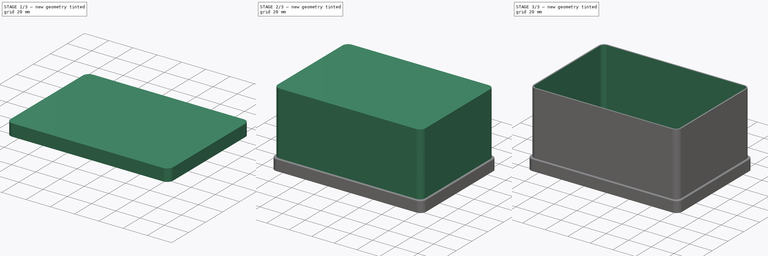
[diagram: build sequence overview — one tinted view per stage of 3, left to right]
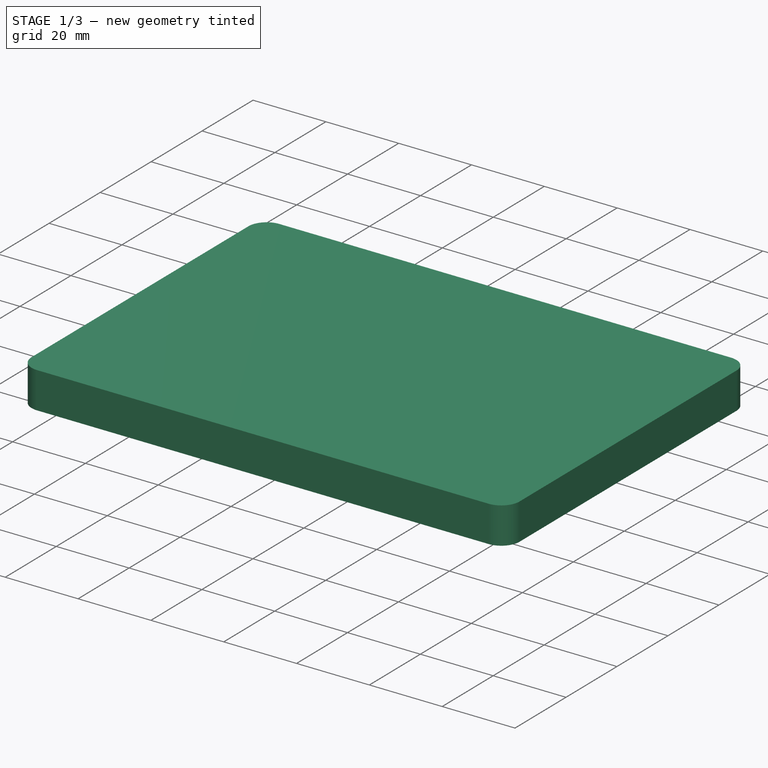
[diagram: stage 1 of 3 — iso view after this stage's code; geometry added in this stage tinted green]
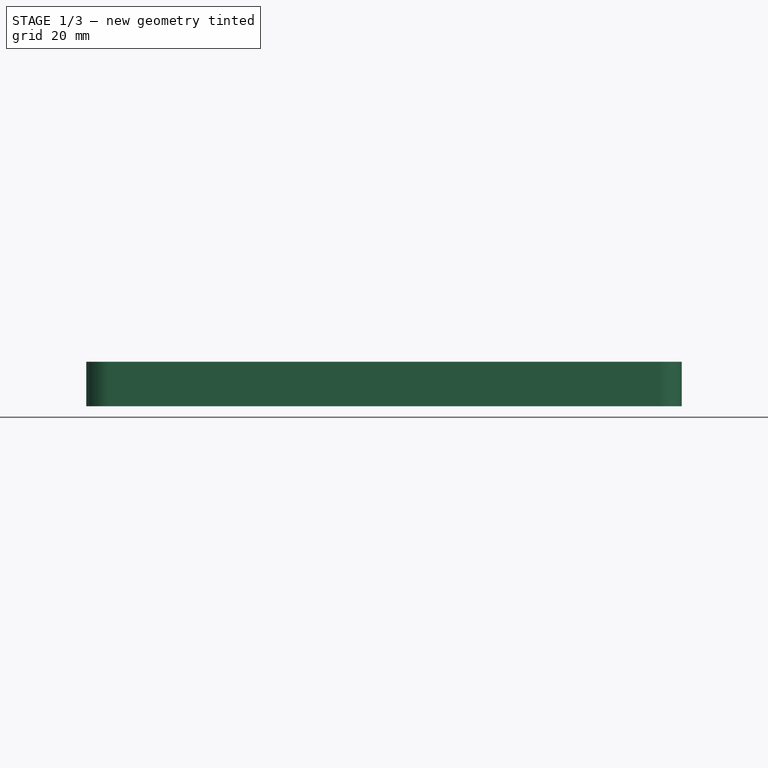
[diagram: stage 1 of 3 — front view after this stage's code; geometry added in this stage tinted green]
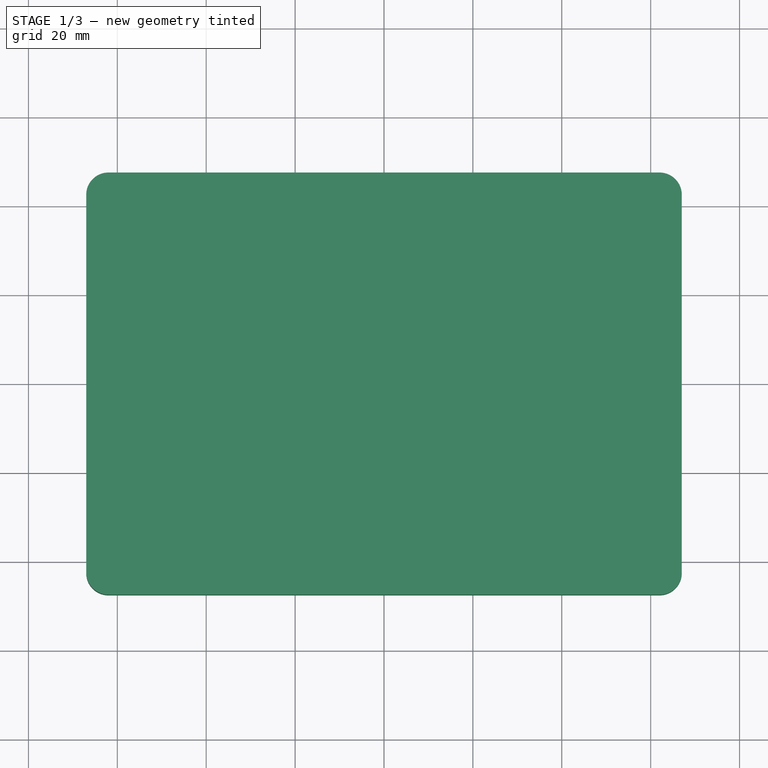
[diagram: stage 1 of 3 — top view after this stage's code; geometry added in this stage tinted green]
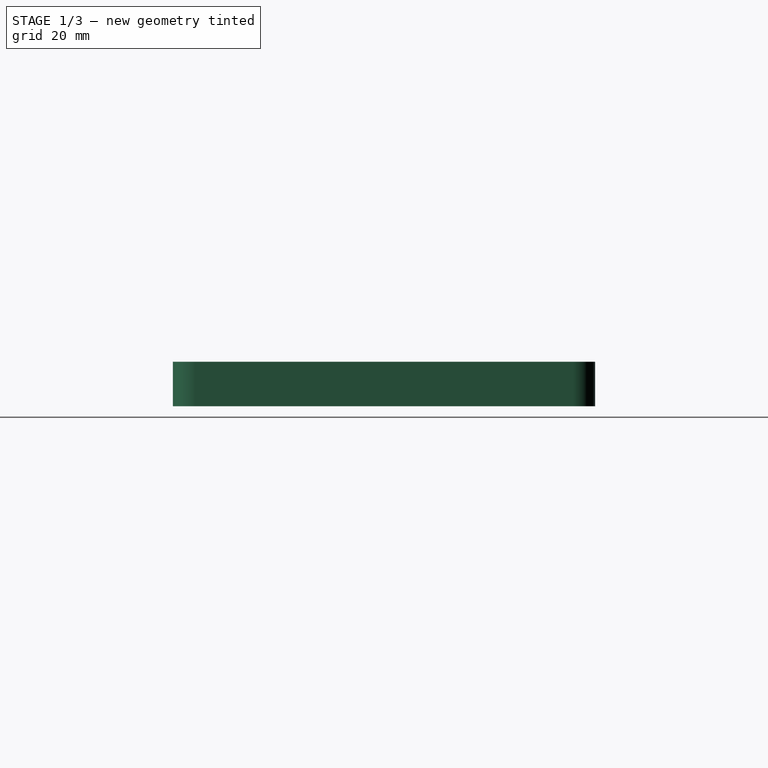
[diagram: stage 1 of 3 — right view after this stage's code; geometry added in this stage tinted green]
FCSTD DOCUMENT  (FreeCAD 0.21R33771 (Git))
Label: 德佟P2标签打印机盒子
License: All rights reserved
LicenseURL: https://en.wikipedia.org/wiki/All_rights_reserved
objects: PartDesign::Fillet×4, Sketcher::SketchObject×2, PartDesign::Pad×2, PartDesign::Thickness×2, PartDesign::Body×2, App::Part×2
note: 20 computed .brp shape members not serialized (recipe doc carries the construction recipe); baked Part::Feature solids carry a one-line shape summary decoded from their .brp

FEATURE [Sketcher::SketchObject] Sketch001
  FullyConstrained = true
  MapMode = 5
  sketch-geometry (12):
    g0: LineSegment StartX=-67 StartY=42.5 StartZ=0 EndX=-67 EndY=-42.5 EndZ=0
    g1: LineSegment StartX=-62 StartY=-47.5 StartZ=0 EndX=62 EndY=-47.5 EndZ=0
    g2: LineSegment StartX=67 StartY=-42.5 StartZ=0 EndX=67 EndY=42.5 EndZ=0
    g3: LineSegment StartX=62 StartY=47.5 StartZ=0 EndX=-62 EndY=47.5 EndZ=0
    g4: ArcOfCircle CenterX=-62 CenterY=42.5 CenterZ=0 NormalX=0 NormalY=0 NormalZ=1 AngleXU=0 Radius=5 StartAngle=1.5708 EndAngle=3.14159
    g5: GeomPoint X=-67 Y=47.5 Z=0
    g6: ArcOfCircle CenterX=62 CenterY=42.5 CenterZ=0 NormalX=0 NormalY=0 NormalZ=1 AngleXU=0 Radius=5 StartAngle=-9e-16 EndAngle=1.5708
    g7: GeomPoint X=67 Y=47.5 Z=0
    g8: ArcOfCircle CenterX=62 CenterY=-42.5 CenterZ=0 NormalX=0 NormalY=0 NormalZ=1 AngleXU=0 Radius=5 StartAngle=4.71239 EndAngle=6.28319
    g9: GeomPoint X=67 Y=-47.5 Z=0
    g10: ArcOfCircle CenterX=-62 CenterY=-42.5 CenterZ=0 NormalX=0 NormalY=0 NormalZ=1 AngleXU=0 Radius=5 StartAngle=3.14159 EndAngle=4.71239
    g11: GeomPoint X=-67 Y=-47.5 Z=0
  constraints (27):
    c: Vertical(g0)
    c: Vertical(g2)
    c: Horizontal(g1)
    c: Horizontal(g3)
    c: DistanceY(g9,g7) = 95
    c: DistanceX(g11,g9) = 134
    c: PointOnObject(g5,g0)
    c: PointOnObject(g5,g3)
    c: Tangent(g0,g4) = -1.5708
    c: Tangent(g3,g4) = -1.5708
    c: PointOnObject(g7,g3)
    c: PointOnObject(g7,g2)
    c: Tangent(g3,g6) = -1.5708
    c: Tangent(g2,g6) = -1.5708
    c: PointOnObject(g9,g2)
    c: PointOnObject(g9,g1)
    c: Tangent(g2,g8) = -1.5708
    c: Tangent(g1,g8) = -1.5708
    c: PointOnObject(g11,g1)
    c: PointOnObject(g11,g0)
    c: Tangent(g1,g10) = -1.5708
    c: Tangent(g0,g10) = -1.5708
    c: Radius(g10) = 5
    c: Radius(g8) = 5
    c: Radius(g6) = 5
    c: Radius(g4) = 5
    c: Symmetric(g4,g8,g-1)
FEATURE [PartDesign::Pad] Pad001
  Direction = (0,0,1)
  Length = 10
  Length2 = 10
  Profile = -> Sketch001
  ReferenceAxis = -> Sketch001 [N_Axis]
  Refine = true
  Type = 0
FEATURE [PartDesign::Thickness] Thickness001
  Base = -> Pad001 [Face9]
  BaseFeature = -> Pad001
  Intersection = false
  Join = 0
  Mode = 0
  Refine = true
  Reversed = true
  SupportTransform = false
  Value = 1.2
FEATURE [PartDesign::Fillet] Fillet001
  Base = -> Thickness001 [Edge25]
  BaseFeature = -> Thickness001
  Radius = 1
  Refine = true
  SupportTransform = false
  UseAllEdges = false
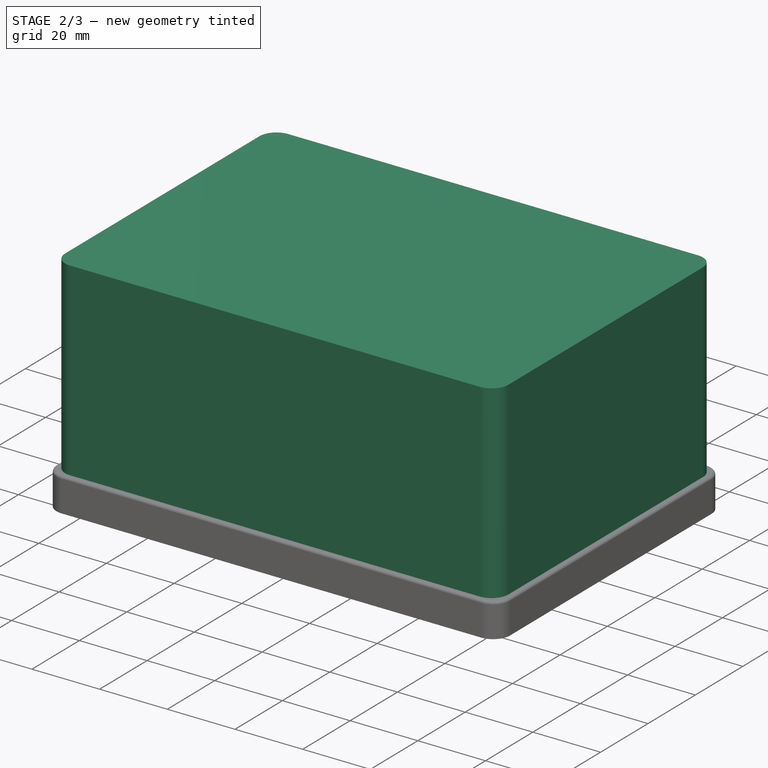
[diagram: stage 2 of 3 — iso view after this stage's code; geometry added in this stage tinted green]
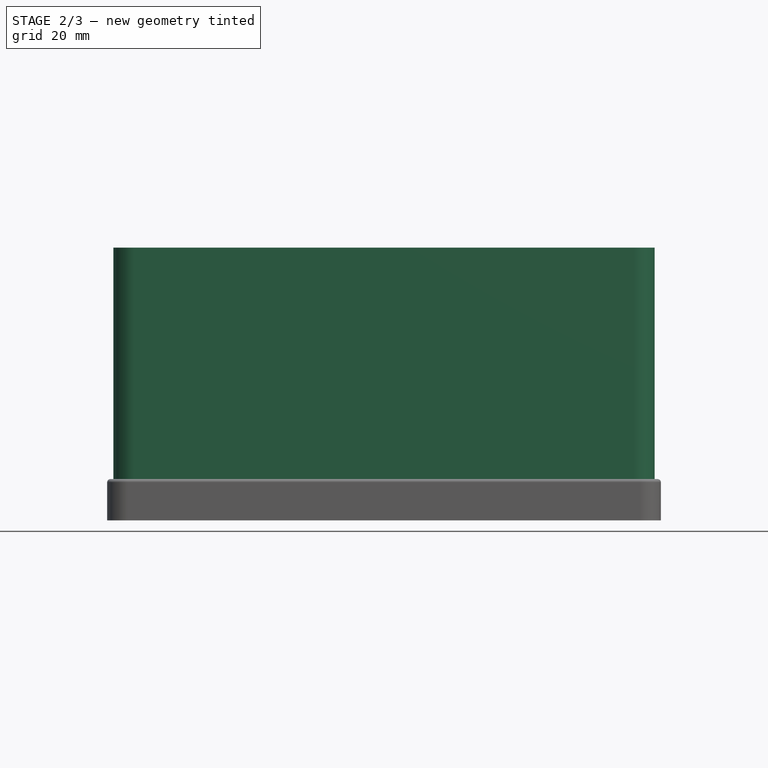
[diagram: stage 2 of 3 — front view after this stage's code; geometry added in this stage tinted green]
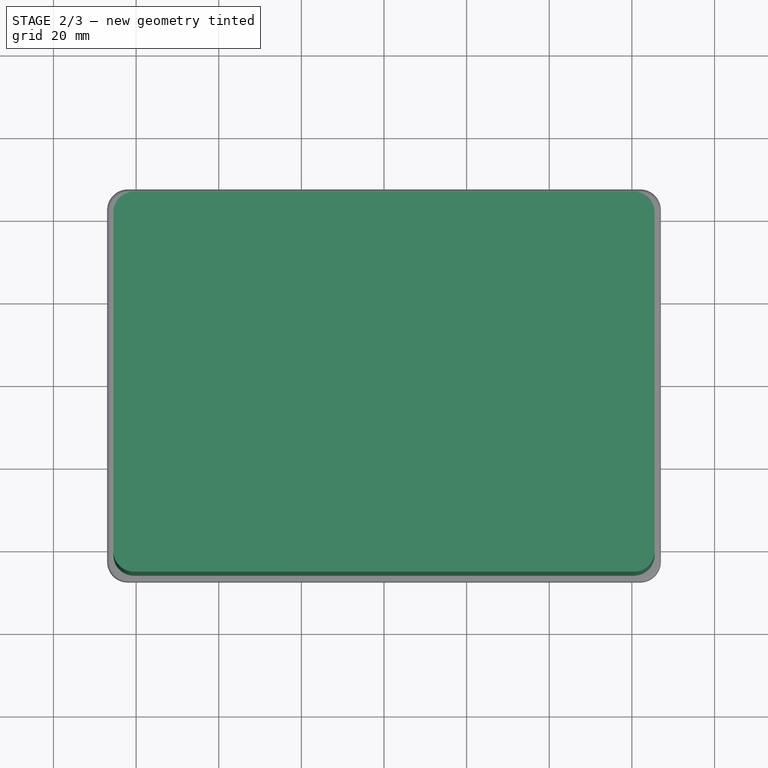
[diagram: stage 2 of 3 — top view after this stage's code; geometry added in this stage tinted green]
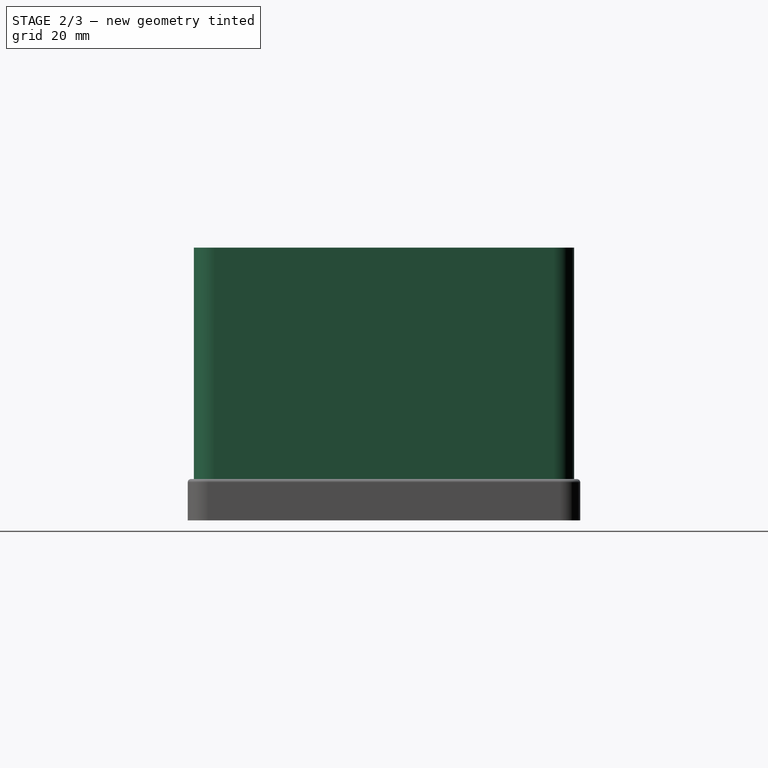
[diagram: stage 2 of 3 — right view after this stage's code; geometry added in this stage tinted green]
FEATURE [Sketcher::SketchObject] Sketch
  FullyConstrained = true
  MapMode = 5
  sketch-geometry (12):
    g0: LineSegment StartX=-65.5 StartY=41 StartZ=0 EndX=-65.5 EndY=-41 EndZ=0
    g1: LineSegment StartX=-60.5 StartY=-46 StartZ=0 EndX=60.5 EndY=-46 EndZ=0
    g2: LineSegment StartX=65.5 StartY=-41 StartZ=0 EndX=65.5 EndY=41 EndZ=0
    g3: LineSegment StartX=60.5 StartY=46 StartZ=0 EndX=-60.5 EndY=46 EndZ=0
    g4: ArcOfCircle CenterX=60.5 CenterY=41 CenterZ=0 NormalX=0 NormalY=0 NormalZ=1 AngleXU=0 Radius=5 StartAngle=0 EndAngle=1.5708
    g5: GeomPoint X=65.5 Y=46 Z=0
    g6: ArcOfCircle CenterX=60.5 CenterY=-41 CenterZ=0 NormalX=0 NormalY=0 NormalZ=1 AngleXU=0 Radius=5 StartAngle=4.71239 EndAngle=6.28319
    g7: GeomPoint X=65.5 Y=-46 Z=0
    g8: ArcOfCircle CenterX=-60.5 CenterY=-41 CenterZ=0 NormalX=0 NormalY=0 NormalZ=1 AngleXU=0 Radius=5 StartAngle=3.14159 EndAngle=4.71239
    g9: GeomPoint X=-65.5 Y=-46 Z=0
    g10: ArcOfCircle CenterX=-60.5 CenterY=41 CenterZ=0 NormalX=0 NormalY=0 NormalZ=1 AngleXU=0 Radius=5 StartAngle=1.5708 EndAngle=3.14159
    g11: GeomPoint X=-65.5 Y=46 Z=0
  constraints (27):
    c: Vertical(g0)
    c: Vertical(g2)
    c: Horizontal(g1)
    c: Horizontal(g3)
    c: DistanceX(g11,g5) = 131
    c: DistanceY(g9,g11) = 92
    c: PointOnObject(g5,g3)
    c: PointOnObject(g5,g2)
    c: Tangent(g3,g4) = -1.5708
    c: Tangent(g2,g4) = -1.5708
    c: PointOnObject(g7,g1)
    c: PointOnObject(g7,g2)
    c: Tangent(g1,g6) = -1.5708
    c: Tangent(g2,g6) = -1.5708
    c: PointOnObject(g9,g1)
    c: PointOnObject(g9,g0)
    c: Tangent(g1,g8) = -1.5708
    c: Tangent(g0,g8) = -1.5708
    c: PointOnObject(g11,g0)
    c: PointOnObject(g11,g3)
    c: Tangent(g0,g10) = -1.5708
    c: Tangent(g3,g10) = -1.5708
    c: Radius(g10) = 5
    c: Radius(g8) = 5
    c: Radius(g6) = 5
    c: Radius(g4) = 5
    c: Symmetric(g1,g3,g-1)
FEATURE [PartDesign::Pad] Pad
  Direction = (0,0,1)
  Length = 66
  Length2 = 10
  Profile = -> Sketch
  ReferenceAxis = -> Sketch [N_Axis]
  Refine = true
  Type = 0
FEATURE [PartDesign::Body] Body
  Group = -> [Sketch,Pad,Thickness,Fillet,Fillet002]
  Origin = -> Origin
  Tip = -> Fillet002
FEATURE [App::Part] Part  label="盒体"
  Group = -> [Body]
  Origin = -> Origin001
FEATURE [PartDesign::Fillet] Fillet003
  Base = -> Fillet001 [Edge47]
  BaseFeature = -> Fillet001
  Radius = 0.8
  Refine = true
  SupportTransform = false
  UseAllEdges = false
FEATURE [PartDesign::Body] Body001
  Group = -> [Sketch001,Pad001,Thickness001,Fillet001,Fillet003]
  Origin = -> Origin003
  Tip = -> Fillet003
FEATURE [App::Part] Part001  label="盒盖"
  Group = -> [Body001]
  Origin = -> Origin002
  Placement = pos=(0,0,120) rot=(0,0,1;0rad)
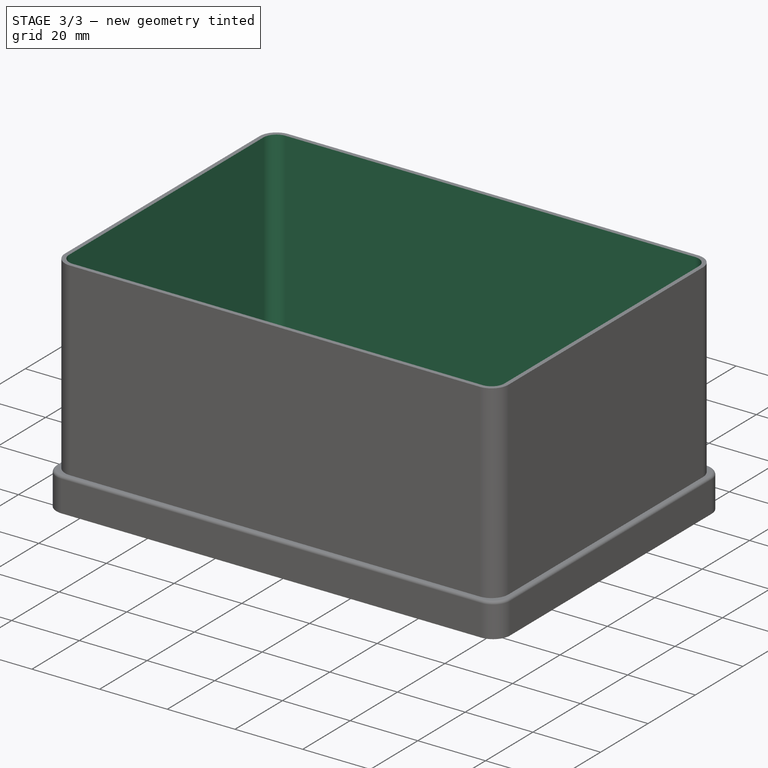
[diagram: stage 3 of 3 — iso view after this stage's code; geometry added in this stage tinted green]
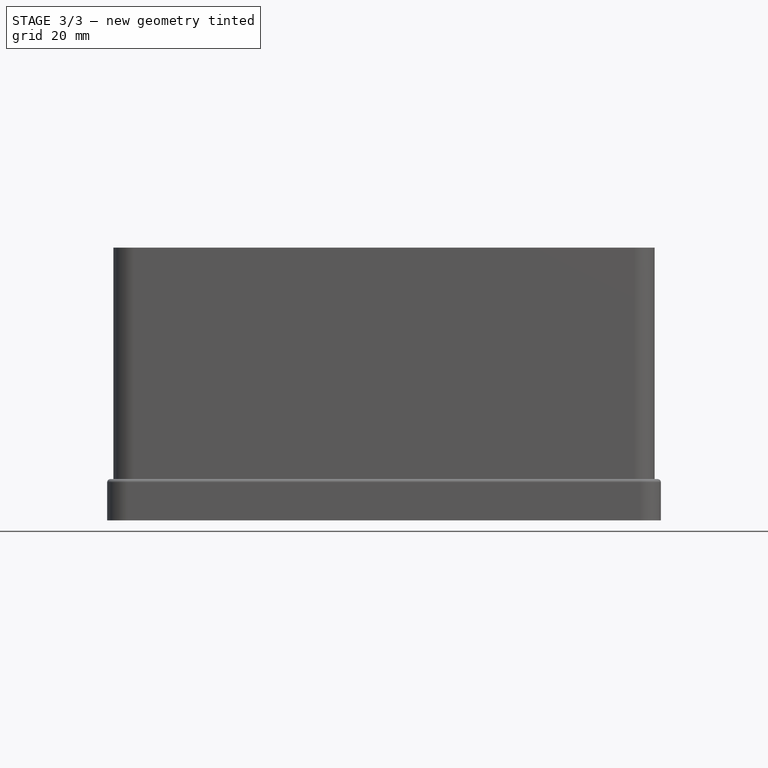
[diagram: stage 3 of 3 — front view after this stage's code; geometry added in this stage tinted green]
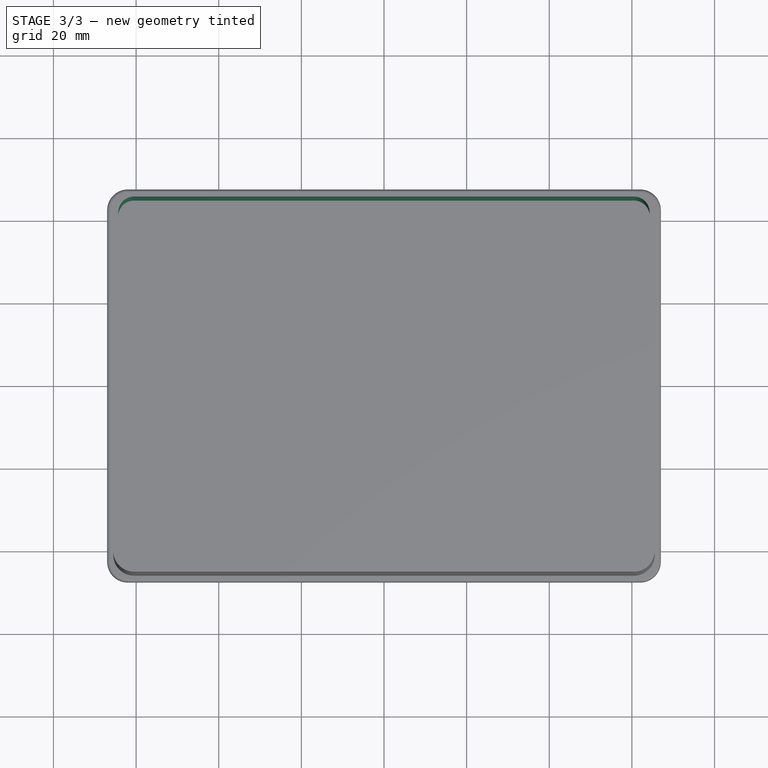
[diagram: stage 3 of 3 — top view after this stage's code; geometry added in this stage tinted green]
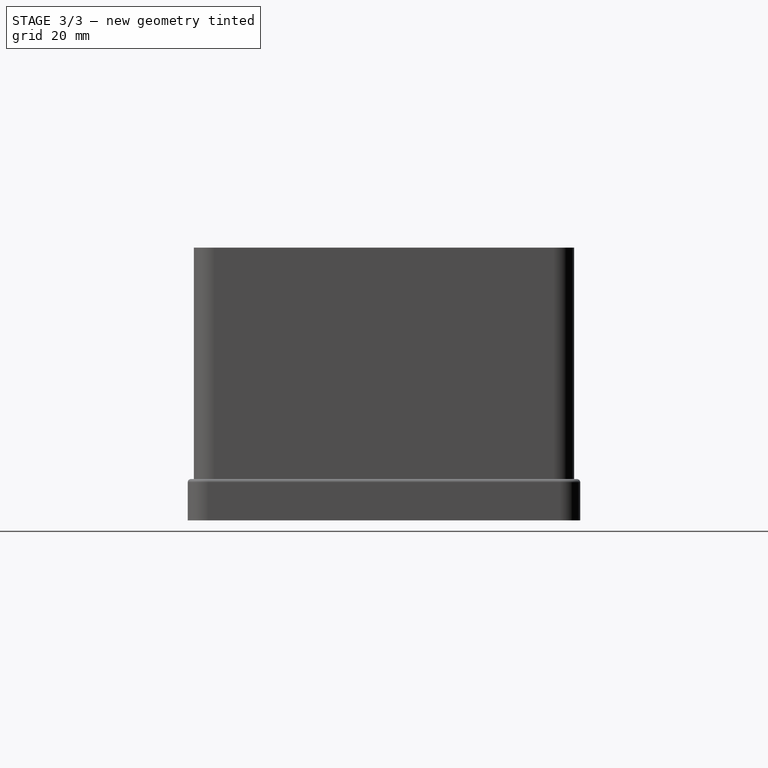
[diagram: stage 3 of 3 — right view after this stage's code; geometry added in this stage tinted green]
FEATURE [PartDesign::Thickness] Thickness
  Base = -> Pad [Face10]
  BaseFeature = -> Pad
  Intersection = false
  Join = 0
  Mode = 0
  Refine = true
  Reversed = true
  SupportTransform = false
  Value = 1.2
FEATURE [PartDesign::Fillet] Fillet
  Base = -> Thickness [Edge21]
  BaseFeature = -> Thickness
  Radius = 0.5
  Refine = true
  SupportTransform = false
  UseAllEdges = false
FEATURE [PartDesign::Fillet] Fillet002
  Base = -> Thickness [Edge16]
  BaseFeature = -> Thickness
  Radius = 1
  Refine = true
  SupportTransform = false
  UseAllEdges = false
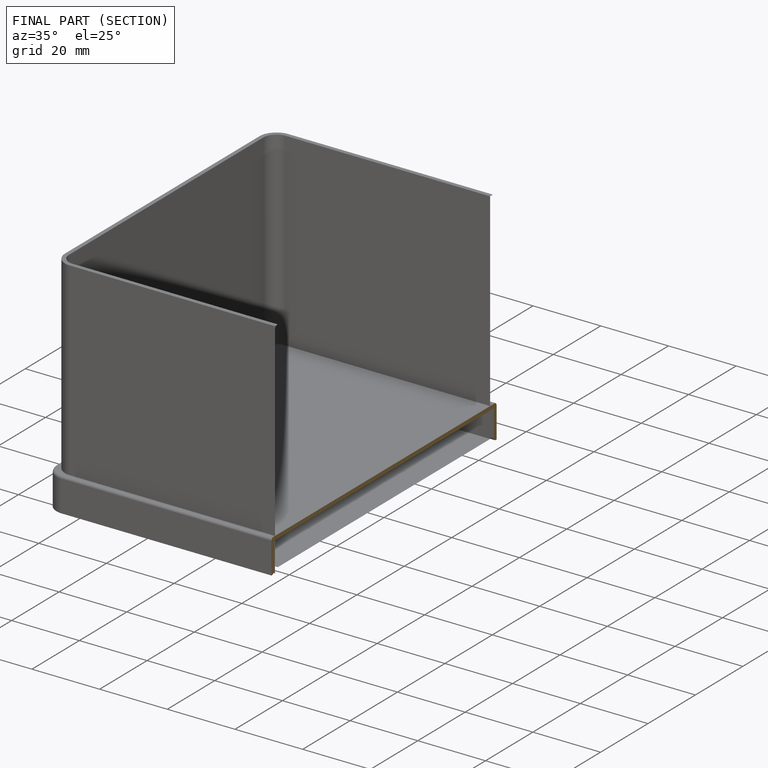
[diagram: finished part — half-section view (interior)]
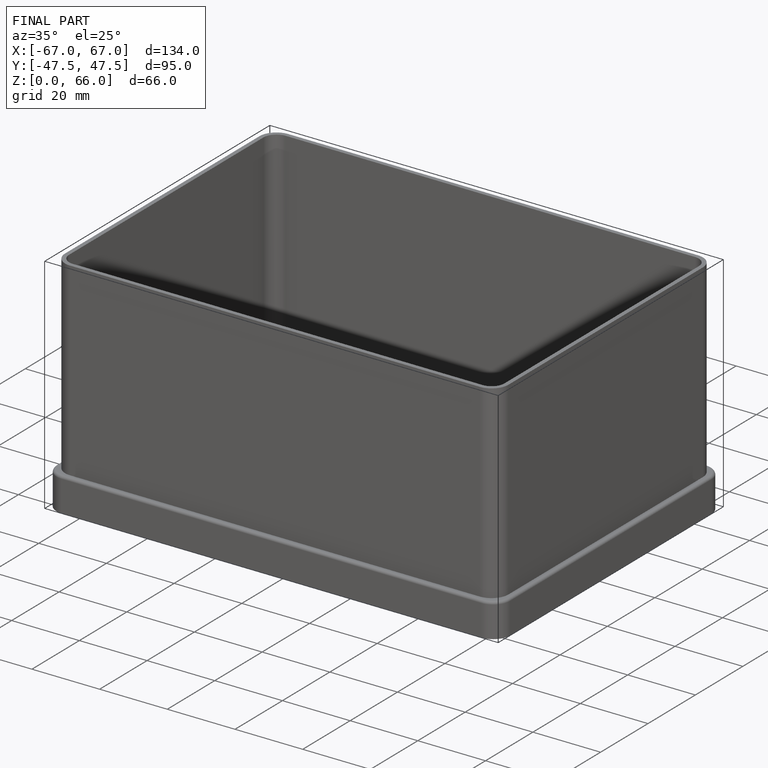
[diagram: finished part — iso view with bounding-box wireframe]
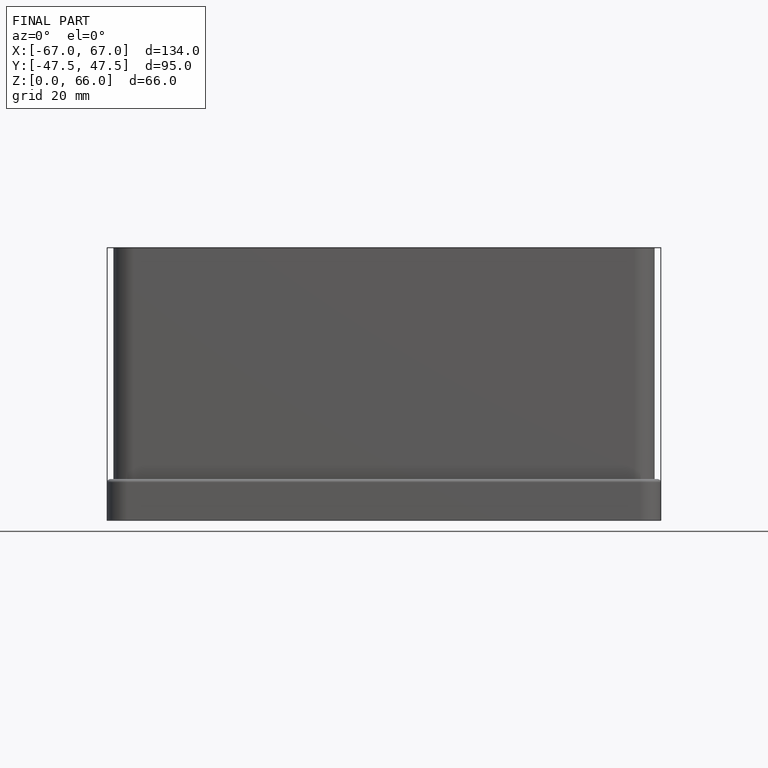
[diagram: finished part — front view with bounding-box wireframe]
